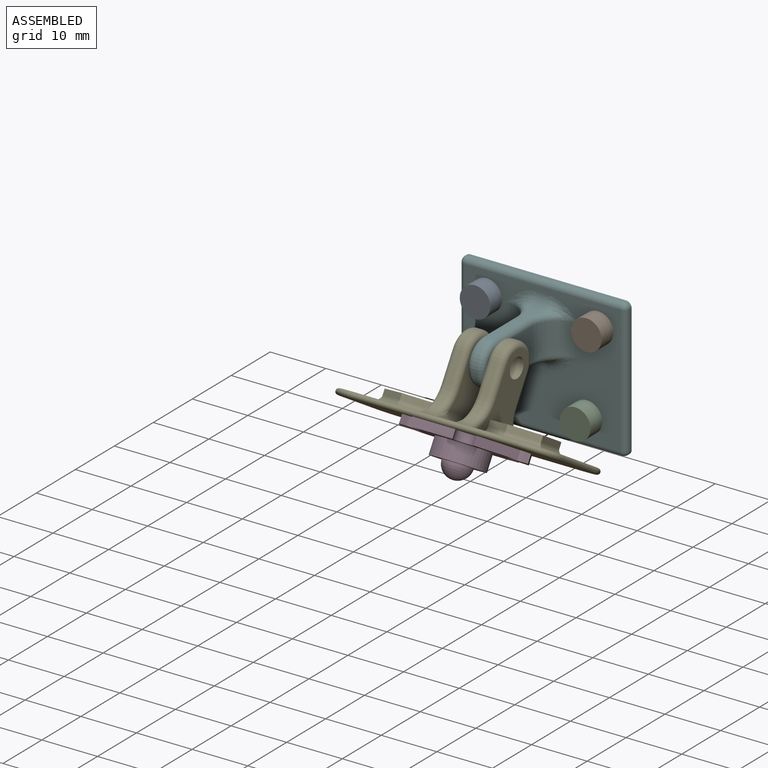
[diagram: assembled view]
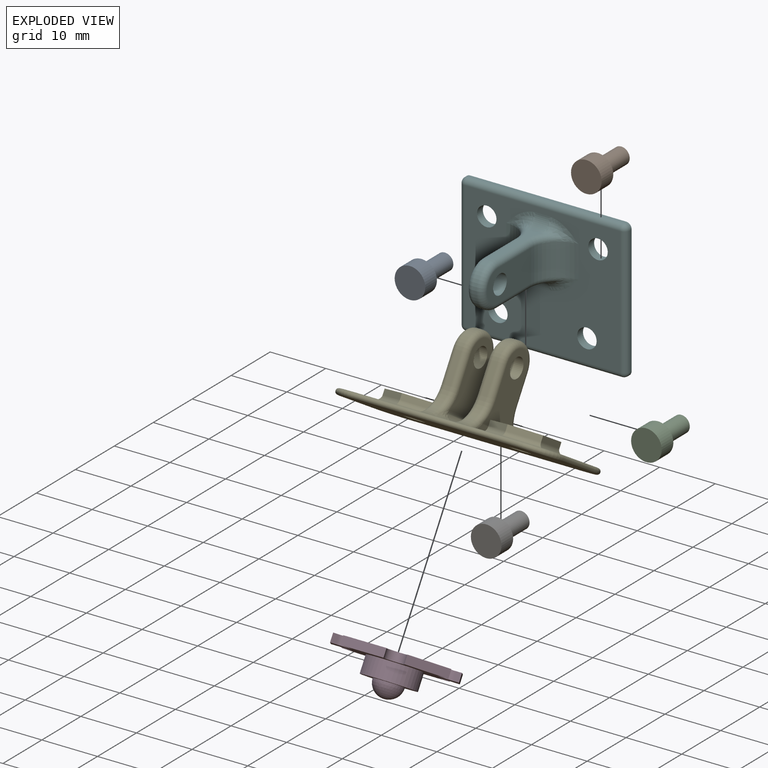
[diagram: exploded view]
GUIDED TOUR — MATED ASSEMBLY (Onshape document a544334e1fa4344969b32d0a, AutoMate assembly a544334e1fa4344969b32d0a_c6847210c81f3b9d24037eff_d57afc837bb6a183b0077f07_default)

This assembly has 7 components, labeled P0..P6 below (a component is one placed occurrence of a part; the same part can appear more than once), held together by 7 mates. A mate is a constraint between two components; its type names the relative motion it leaves free:
  REVOLUTE — leaves rotation about the listed axis free (a hinge).
Axis/direction vectors are unit vectors and 'through' points are millimeter coordinates, both in the assembly's world frame.

MATES
  1. REVOLUTE "Revolute 2": P5 <-> P6, axis (0.000, -1.000, 0.000) through (7.00, -1.50, 5.00) mm
  2. REVOLUTE "Revolute 3": P5 <-> P1, axis (0.000, -1.000, 0.000) through (25.00, -1.50, 20.00) mm
  3. REVOLUTE "Revolute 1": P5 <-> P0, axis (0.000, -1.000, 0.000) through (5.00, -1.50, 20.00) mm
  4. REVOLUTE "Revolute 6": P3 <-> P4, axis (0.000, 0.522, 0.853) through (24.25, -20.51, 7.19) mm
  5. REVOLUTE "Revolute 5": P5 <-> P4, axis (1.000, 0.000, 0.000) through (16.50, -14.50, 17.00) mm
  6. REVOLUTE "Revolute 7": P4 <-> P3, axis (0.000, -0.522, -0.853) through (5.25, -20.51, 7.19) mm
  7. REVOLUTE "Revolute 4": P5 <-> P2, axis (0.000, -1.000, 0.000) through (23.00, -1.50, 5.00) mm

ASSEMBLY ORDER
  1. P4 — the base component [order verified]
  2. P5 [order verified]
  3. P1 [order verified]
  4. P6 [order verified]
  5. P2 [order verified]
  6. P0 [order verified]
  7. P3 [order verified]
Order-tag legend:
  [order verified] — this step's position reverses a verified removal order: the component was checked to insert without passing through the ones already placed.

Of the 7 components, 5 carry the full construction recipe — the FeatureScript program that regenerates the part's solid from scratch; the rest are supplied as boundary geometry only.
Each toured component is shown spotlighted twice — in the assembled view, then in the exploded view, where a leader line traces a displaced component back to its assembled socket (saturated green if recipe-attached, orange if geometry-only; every other component desaturated gray) — followed by its recipe or geometry summary and the mates that hold it.
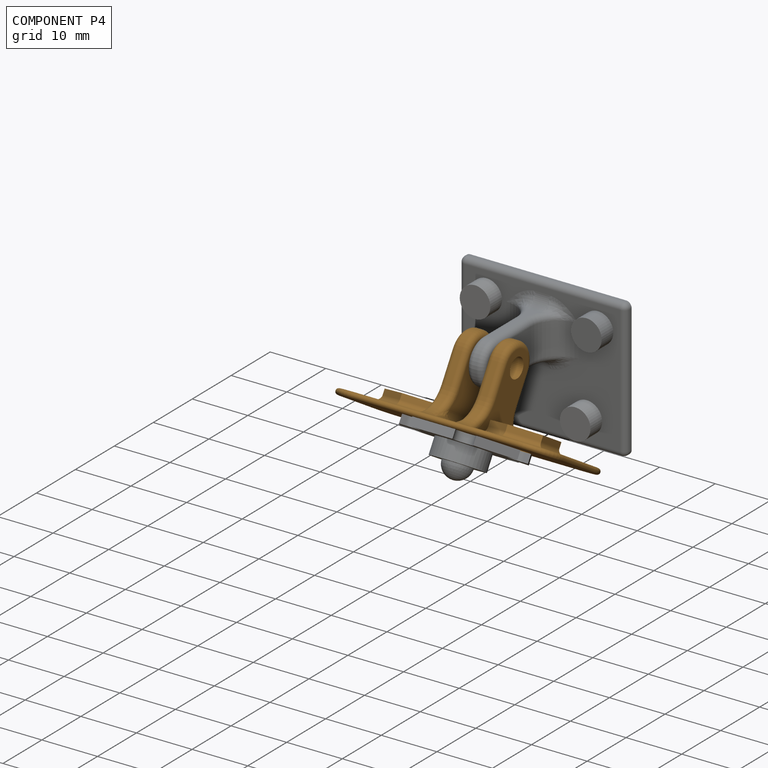
[diagram: component P4 — assembled]
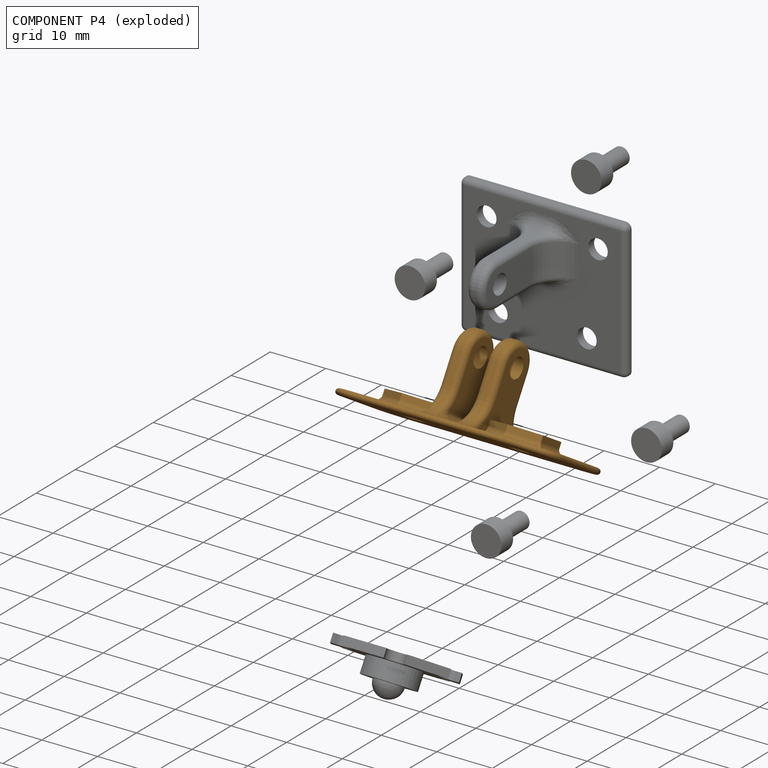
[diagram: component P4 — exploded]
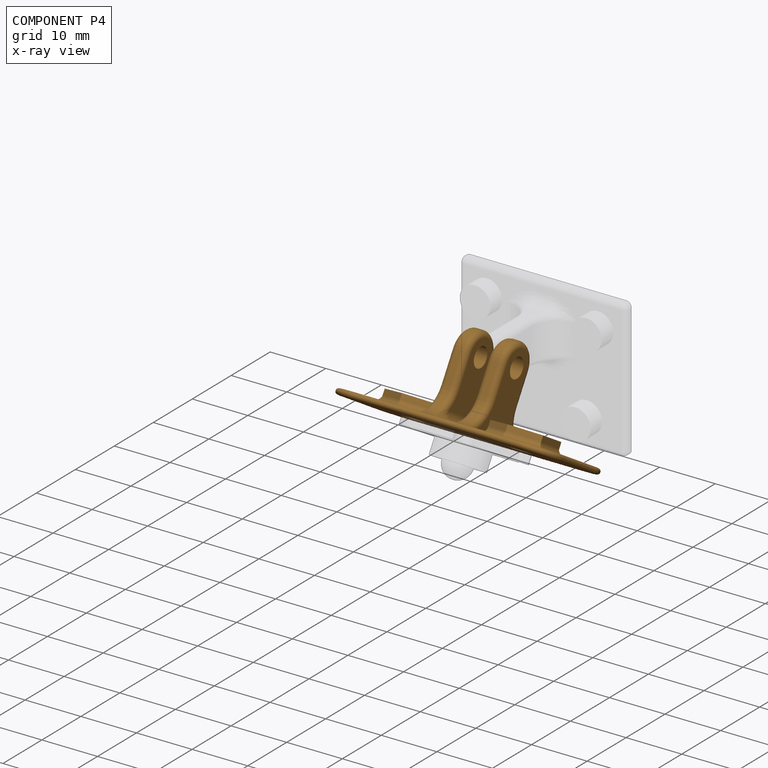
[diagram: component P4 — x-ray view]
COMPONENT P4 — geometry summary (no construction recipe available for this part):
  bounding box: 40.8 x 20.8 x 17.1 mm
  B-rep topology: 1 solid, 90 faces, 444 edges
  volume: 1608 mm^3 (11% of its bounding box)
  symmetry: 2-fold rotationally symmetric about the z axis; mirror-symmetric across its x mid-plane, y mid-plane
Held by: REVOLUTE mate "Revolute 6" to P3; REVOLUTE mate "Revolute 5" to P5; REVOLUTE mate "Revolute 7" to P3.
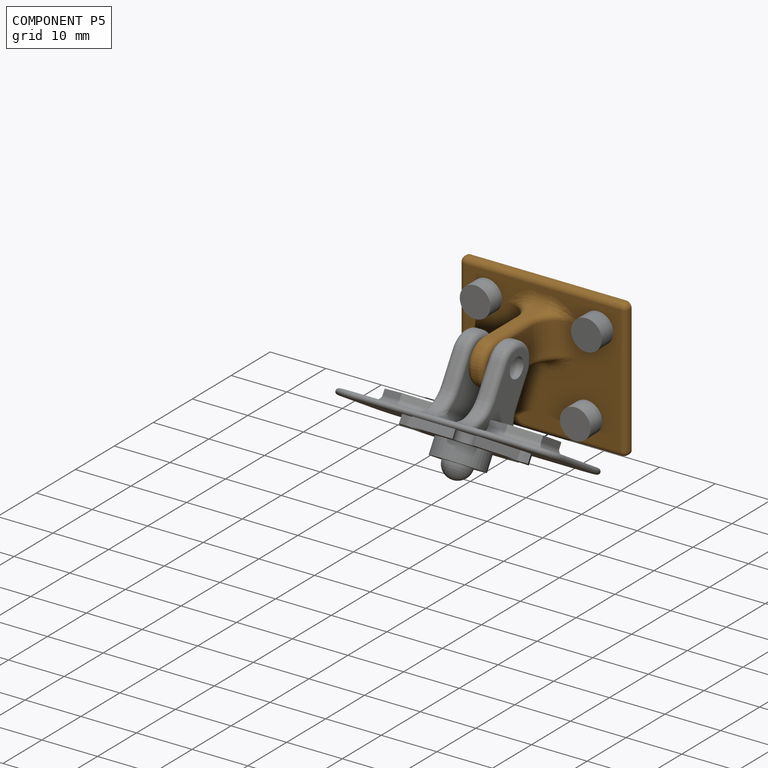
[diagram: component P5 — assembled]
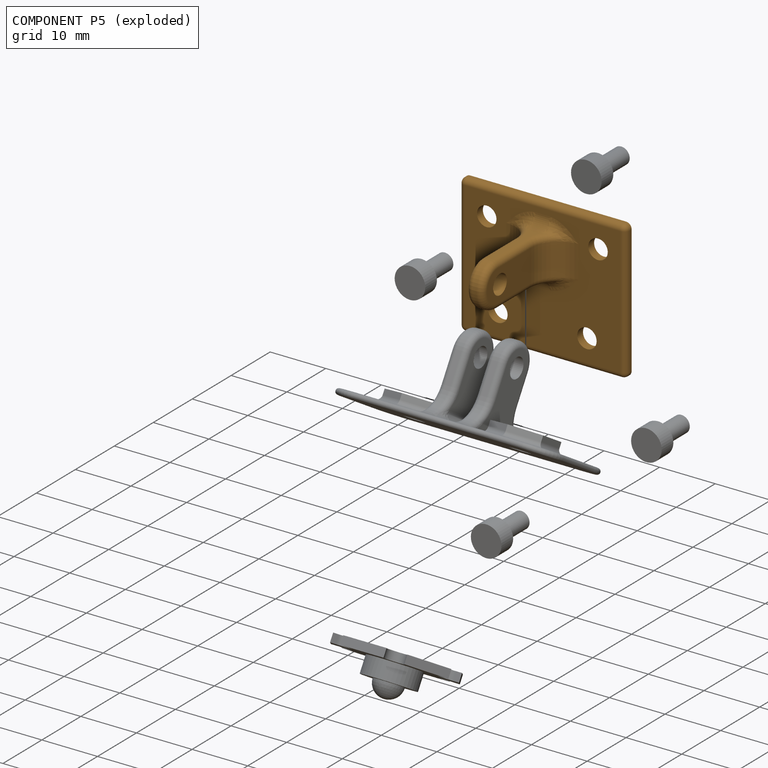
[diagram: component P5 — exploded]
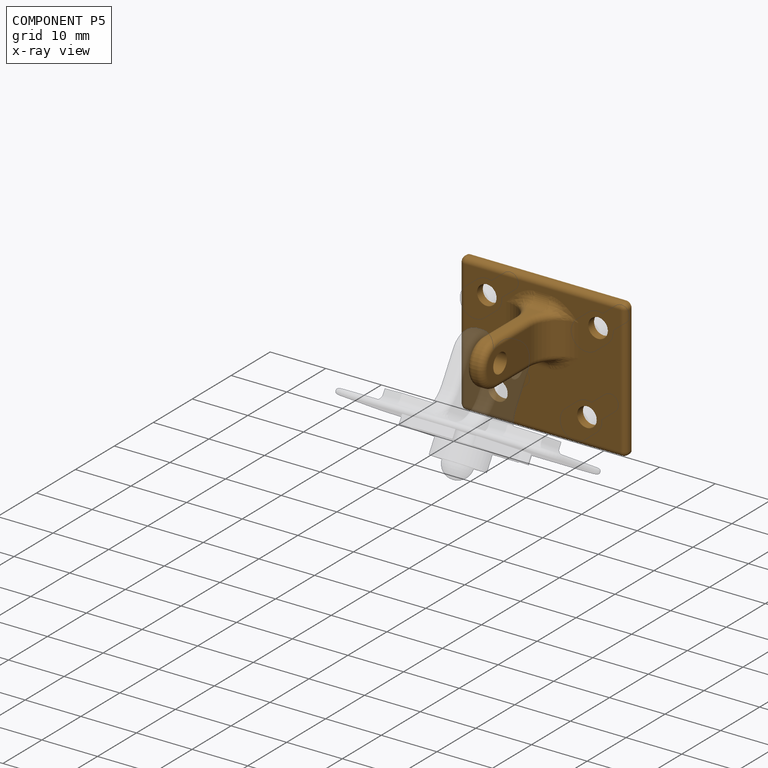
[diagram: component P5 — x-ray view]
COMPONENT P5 — geometry summary (no construction recipe available for this part):
  bounding box: 30.0 x 25.0 x 20.3 mm
  B-rep topology: 1 solid, 46 faces, 212 edges
  volume: 1487 mm^3 (10% of its bounding box)
  symmetry: mirror-symmetric across its x mid-plane
Held by: REVOLUTE mate "Revolute 2" to P6; REVOLUTE mate "Revolute 3" to P1; REVOLUTE mate "Revolute 1" to P0; REVOLUTE mate "Revolute 5" to P4; REVOLUTE mate "Revolute 4" to P2.
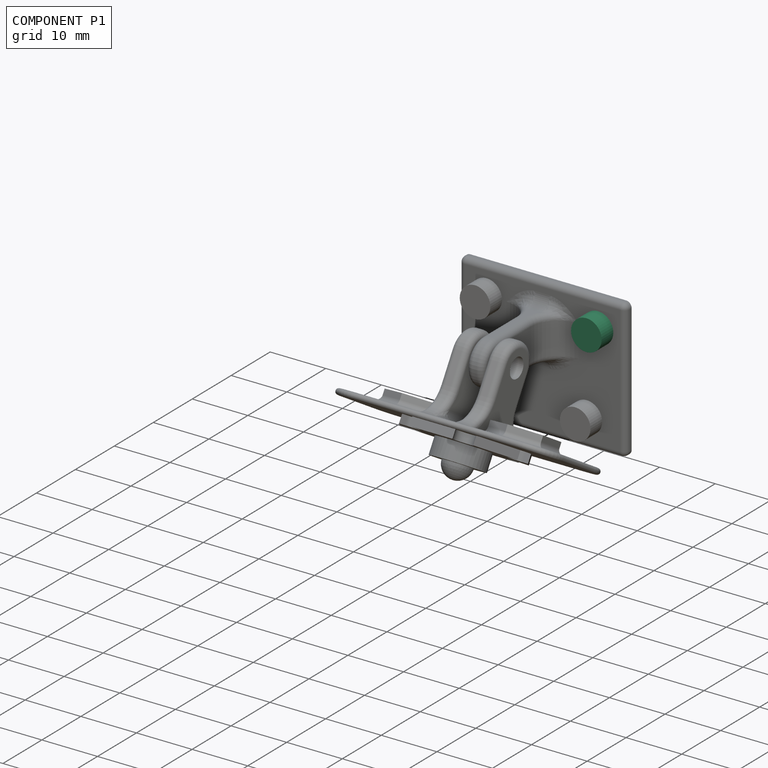
[diagram: component P1 — assembled]
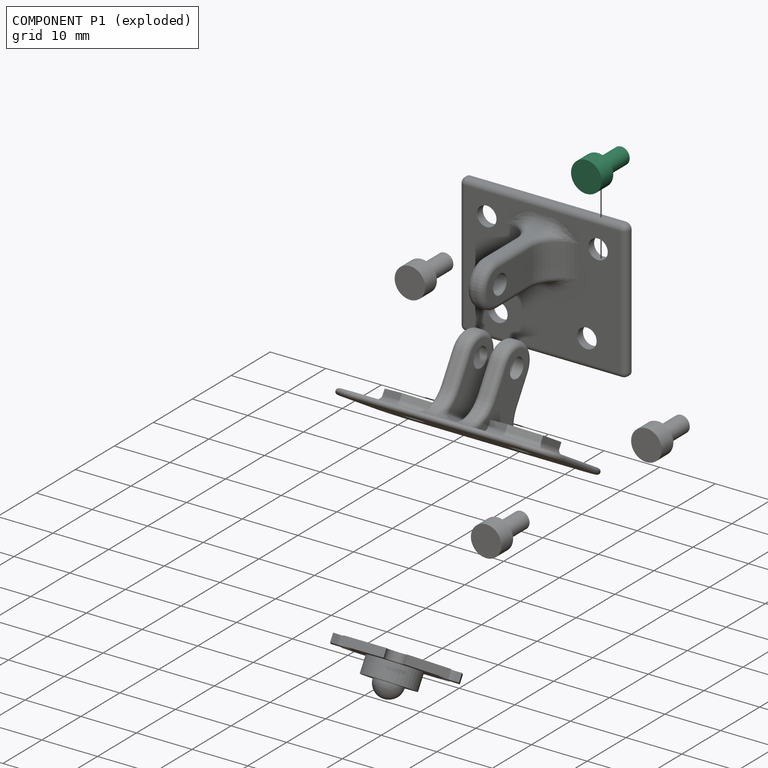
[diagram: component P1 — exploded]
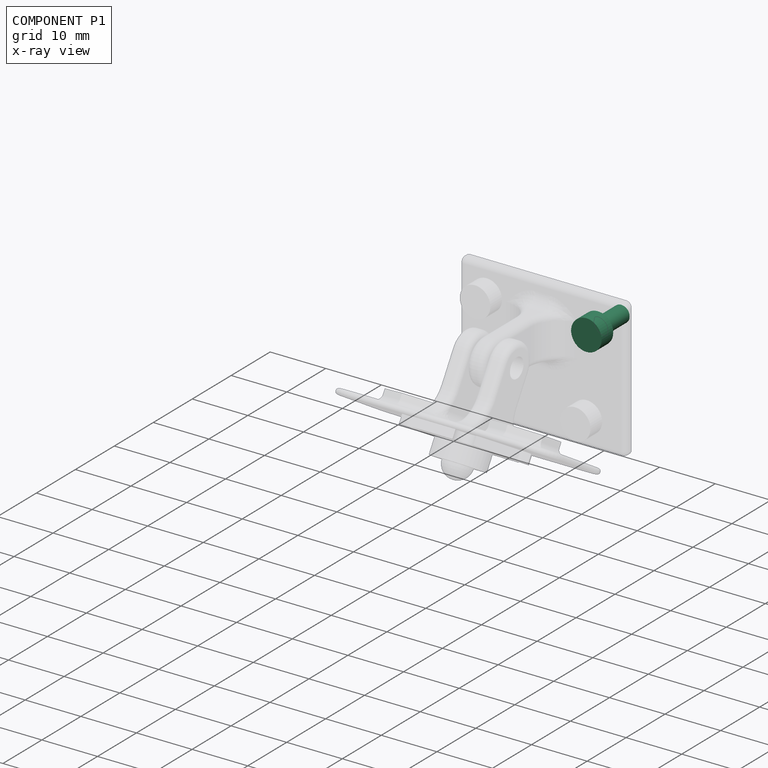
[diagram: component P1 — x-ray view]
COMPONENT P1 — same part as P0 (CADFS 00222713); its construction recipe is shown at P0.
Held by: REVOLUTE mate "Revolute 3" to P5.
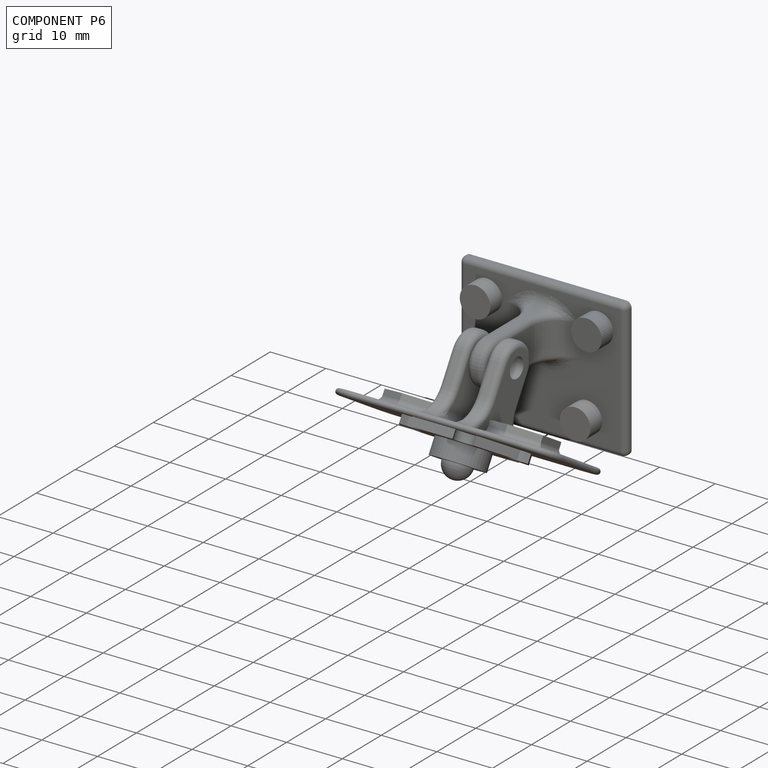
[diagram: component P6 — assembled]
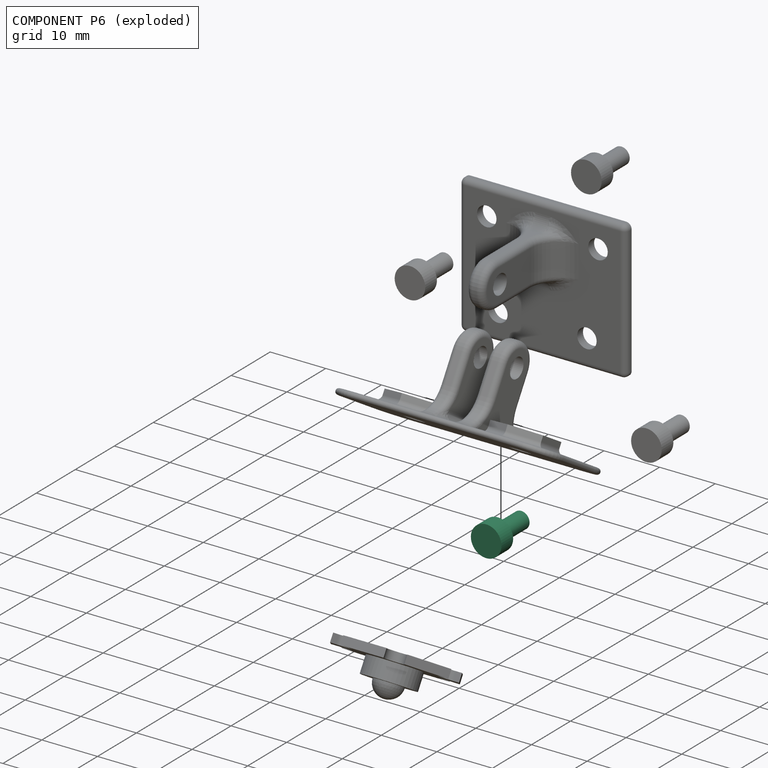
[diagram: component P6 — exploded]
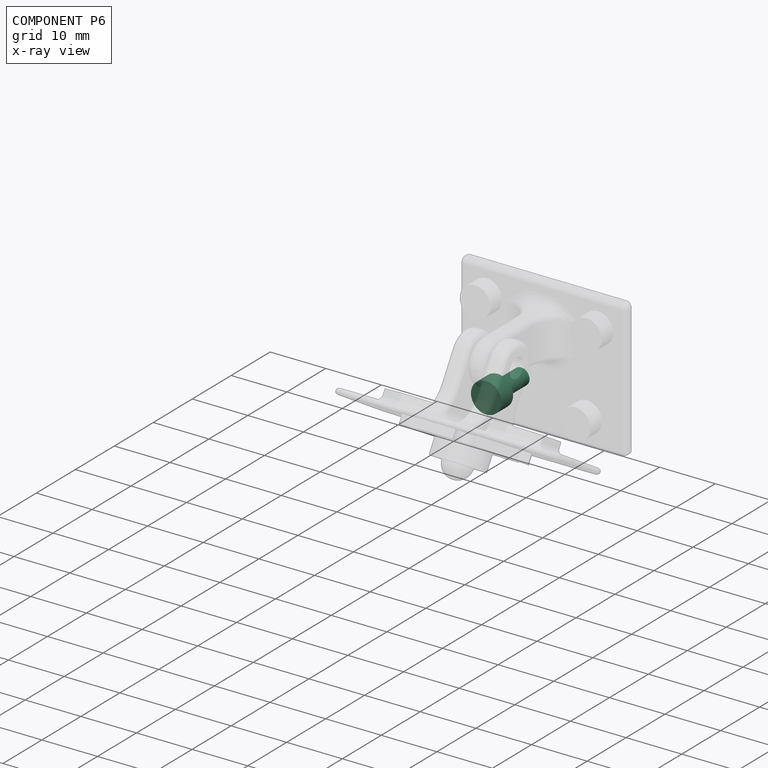
[diagram: component P6 — x-ray view]
COMPONENT P6 — same part as P0 (CADFS 00222713); its construction recipe is shown at P0.
Held by: REVOLUTE mate "Revolute 2" to P5.
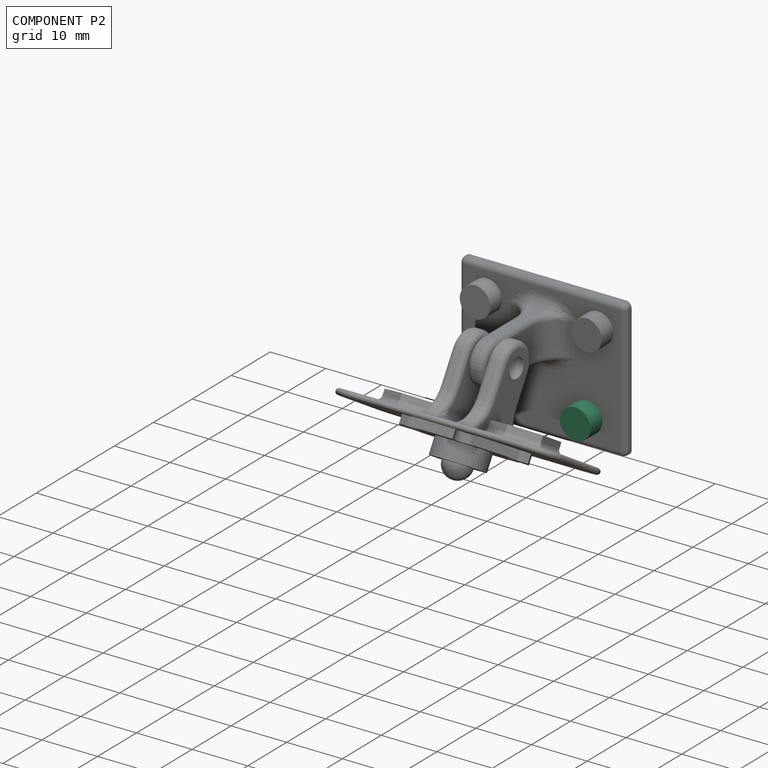
[diagram: component P2 — assembled]
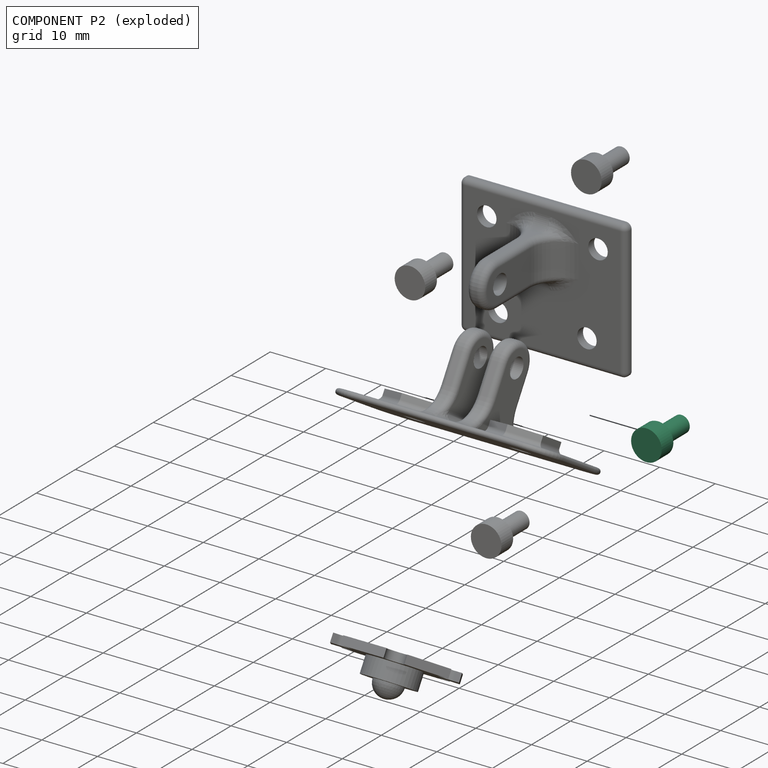
[diagram: component P2 — exploded]
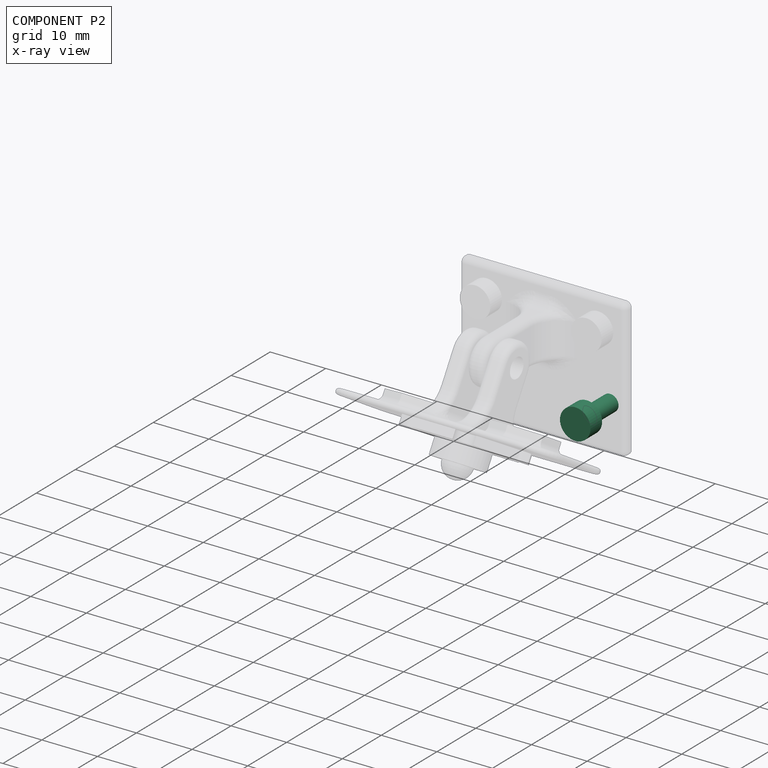
[diagram: component P2 — x-ray view]
COMPONENT P2 — same part as P0 (CADFS 00222713); its construction recipe is shown at P0.
Held by: REVOLUTE mate "Revolute 4" to P5.
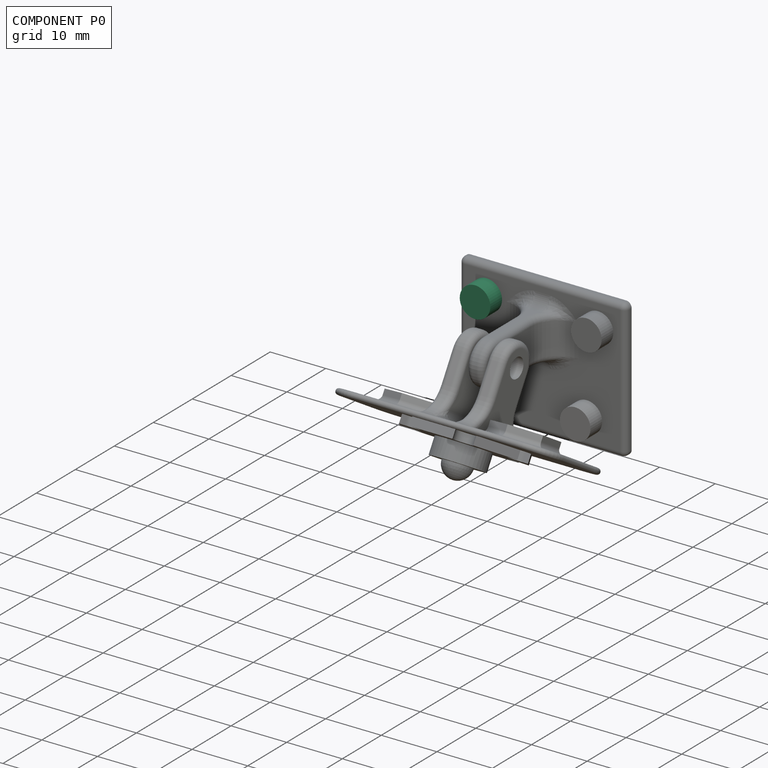
[diagram: component P0 — assembled]
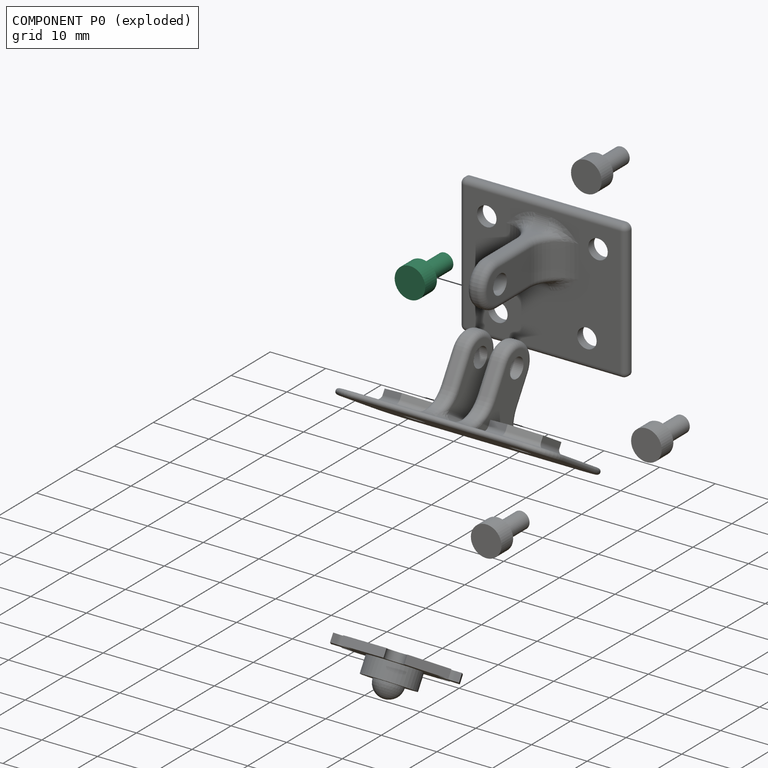
[diagram: component P0 — exploded]
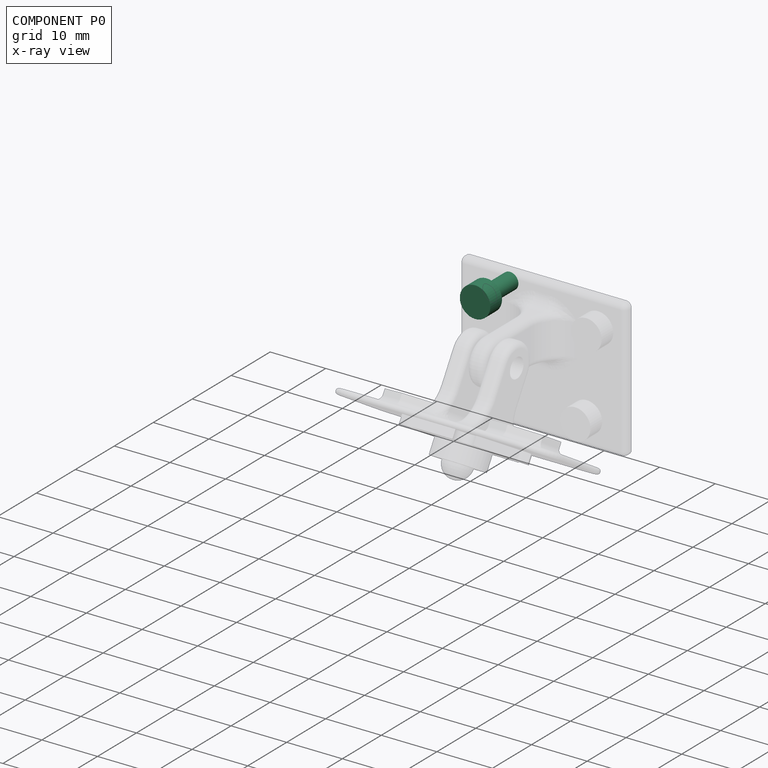
[diagram: component P0 — x-ray view]
COMPONENT P0 — recipe-attached (CADFS 00222713, mesh-verified: the recipe's output STEP matches this component's geometry to below the mesh-comparison resolution (tessellation chordal tolerance ~0.0178 mm)).
Held by: REVOLUTE mate "Revolute 1" to P5.
Construction recipe (FeatureScript — the CAD program that rebuilds this solid; sketch coordinates are in the units given by the * unit suffixes, e.g. mm):

FeatureScript 1511;
import(path : "onshape/std/geometry.fs", version : "1511.0");
import(path : "onshape/std/common.fs", version : "1511.0");
const mm = millimeter;
const VERTEX = EntityType.VERTEX;
const EDGE = EntityType.EDGE;
const FACE = EntityType.FACE;
const BODY = EntityType.BODY;
function v(x, y){return vector(x, y);}
function OD(order){return orderDisambiguation(order);}
function OSD(set){return originalSetDisambiguation(set);}
function TD(topology){return topologyDisambiguation(topology);}
function TDD(query){return trueDependencyDisambiguation(query);}
function sQuery(a, b, c) {return sketchEntityQuery(a, b, c);}

annotation { "Feature Type Name" : "Feature", "Feature Type Description" : "" }
export const myFeature = defineFeature(function(context is Context, id is Id, definition is map)
    precondition{}
    {
        {
            var Q0;
            Q0=qCreatedBy(makeId("Top.planeOp"),FACE);
            var sketch = newSketch(context, id + "F0", { "sketchPlane" : qUnion([Q0])});
            skCircle(sketch, "E0", {"center": v(0, 0) * mm, "radius": 2.75 * mm});
            skSolve(sketch);
        }
        {
            var Q0;
            Q0=makeQuery(id+"F0.imprint","IMPRINT",FACE,{"disambiguationData":[TD([[makeQuery(id+"F0.imprint","IMPRINT",EDGE,{"derivedFrom":sQuery(id+"F0.wireOp",EDGE,"E0")}),1.0]])]});
            extrude(context, id + "F1", {"entities" : qUnion([Q0]), "depth" : 3 * mm});
        }
        {
            var Q0;
            Q0=makeQuery(id+"F1.opExtrude","CAP_FACE",FACE,{"disambiguationData":[OSD([sQuery(id+"F0.wireOp",EDGE,"E0")])],"isStart":true});
            var sketch = newSketch(context, id + "F2", { "sketchPlane" : qUnion([Q0])});
            skCircle(sketch, "E1", {"center": v(0, 0) * mm, "radius": 1.5 * mm});
            skSolve(sketch);
        }
        {
            var Q0;
            Q0=makeQuery(id+"F2.imprint","IMPRINT",FACE,{"disambiguationData":[TD([[makeQuery(id+"F2.imprint","IMPRINT",EDGE,{"derivedFrom":sQuery(id+"F2.wireOp",EDGE,"E1")}),1.0]])]});
            extrude(context, id + "F3", {"entities" : qUnion([Q0]), "operationType" : NewBodyOperationType.ADD, "depth" : 6 * mm});
        }
    });
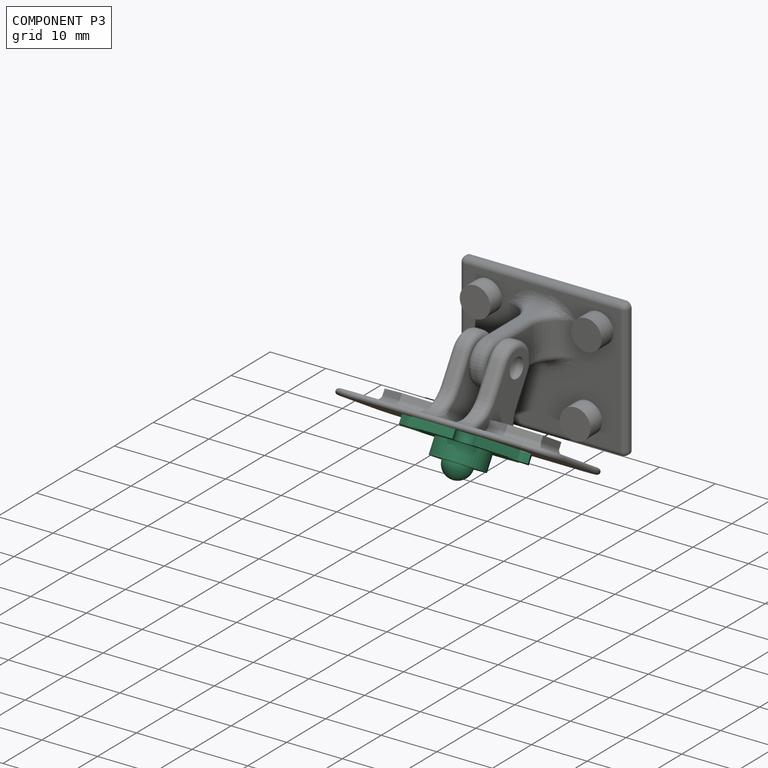
[diagram: component P3 — assembled]
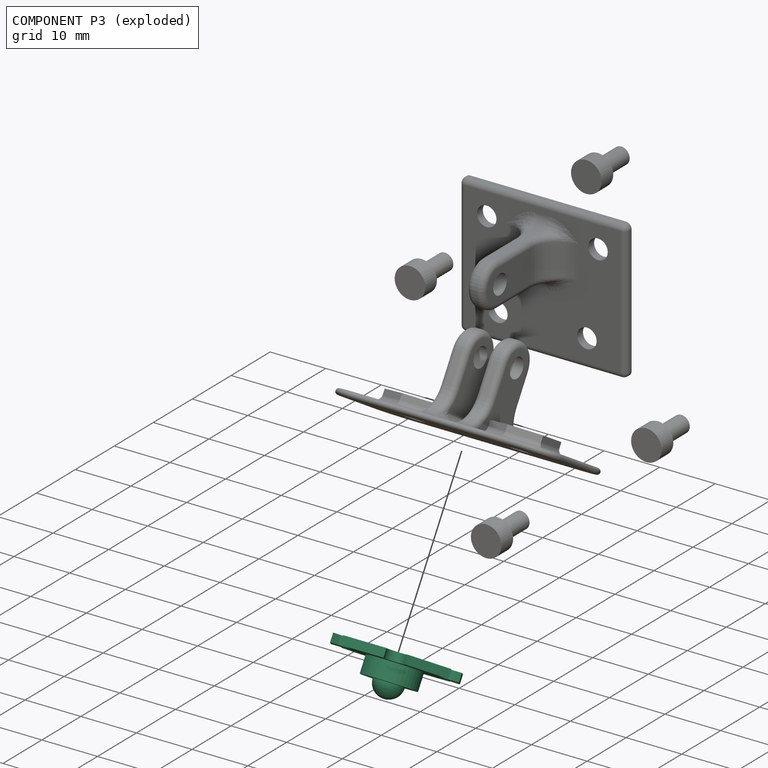
[diagram: component P3 — exploded]
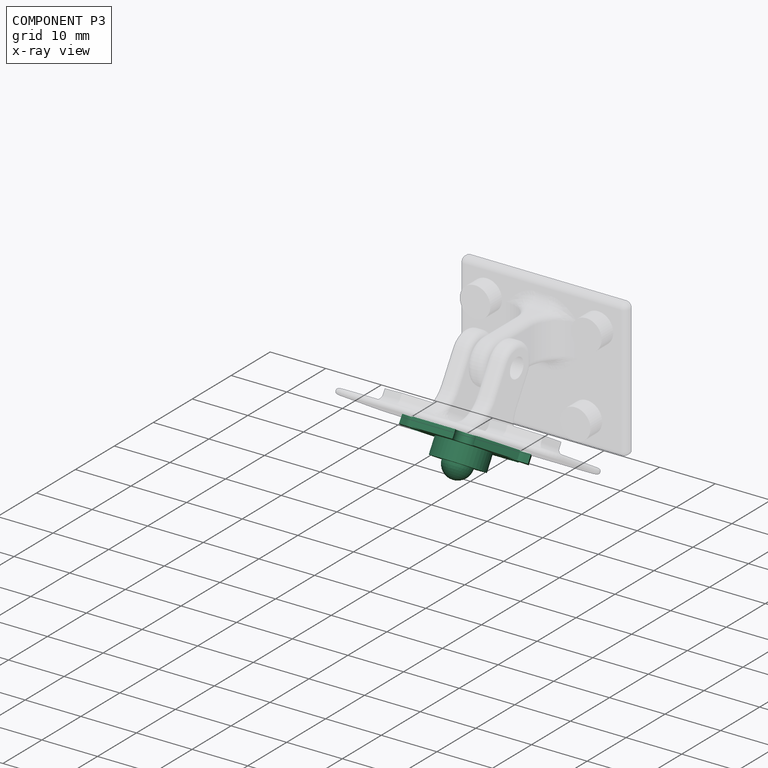
[diagram: component P3 — x-ray view]
COMPONENT P3 — recipe-attached (CADFS 00222714, mesh-verified: the recipe's output STEP matches this component's geometry to below the mesh-comparison resolution (tessellation chordal tolerance ~0.0448 mm)).
Held by: REVOLUTE mate "Revolute 6" to P4; REVOLUTE mate "Revolute 7" to P4.
Construction recipe (FeatureScript — the CAD program that rebuilds this solid; sketch coordinates are in the units given by the * unit suffixes, e.g. mm):

FeatureScript 1511;
import(path : "onshape/std/geometry.fs", version : "1511.0");
import(path : "onshape/std/common.fs", version : "1511.0");
const mm = millimeter;
const VERTEX = EntityType.VERTEX;
const EDGE = EntityType.EDGE;
const FACE = EntityType.FACE;
const BODY = EntityType.BODY;
function v(x, y){return vector(x, y);}
function OD(order){return orderDisambiguation(order);}
function OSD(set){return originalSetDisambiguation(set);}
function TD(topology){return topologyDisambiguation(topology);}
function TDD(query){return trueDependencyDisambiguation(query);}
function sQuery(a, b, c) {return sketchEntityQuery(a, b, c);}

annotation { "Feature Type Name" : "Feature", "Feature Type Description" : "" }
export const myFeature = defineFeature(function(context is Context, id is Id, definition is map)
    precondition{}
    {
        {
            var Q0;
            Q0=qCreatedBy(makeId("Top.planeOp"),FACE);
            var sketch = newSketch(context, id + "F0", { "sketchPlane" : qUnion([Q0])});
            skCircle(sketch, "E0.cCircle", {"center": v(0, 0) * mm, "radius": 9.95 * mm, "construction": true});
            skLineSegment(sketch, "E0.0", {"start": v(9.95, 5.74) * mm, "end": v(9.95, -5.74) * mm});
            skLineSegment(sketch, "E0.1", {"start": v(9.95, -5.74) * mm, "end": v(0, -11.49) * mm});
            skLineSegment(sketch, "E0.2", {"start": v(0, -11.49) * mm, "end": v(-9.95, -5.74) * mm});
            skLineSegment(sketch, "E0.3", {"start": v(-9.95, -5.74) * mm, "end": v(-9.95, 5.74) * mm});
            skLineSegment(sketch, "E0.4", {"start": v(-9.95, 5.74) * mm, "end": v(0, 11.49) * mm});
            skLineSegment(sketch, "E0.5", {"start": v(0, 11.49) * mm, "end": v(9.95, 5.74) * mm});
            skPoint(sketch, "E0.0.midPoint", {"position": v(9.95, 0) * mm});
            skSolve(sketch);
        }
        {
            var Q0;
            Q0=makeQuery(id+"F0.imprint","IMPRINT",FACE,{"disambiguationData":[TD([[makeQuery(id+"F0.imprint","IMPRINT",EDGE,{"derivedFrom":sQuery(id+"F0.wireOp",EDGE,"E0.0")}),-1.0]])]});
            extrude(context, id + "F1", {"entities" : qUnion([Q0]), "depth" : 1.5 * mm});
        }
        {
            var Q0;
            Q0=makeQuery(id+"F1.opExtrude","CAP_FACE",FACE,{"disambiguationData":[OSD([sQuery(id+"F0.wireOp",EDGE,"E0.0"),sQuery(id+"F0.wireOp",EDGE,"E0.1"),sQuery(id+"F0.wireOp",EDGE,"E0.2"),sQuery(id+"F0.wireOp",EDGE,"E0.3"),sQuery(id+"F0.wireOp",EDGE,"E0.4"),sQuery(id+"F0.wireOp",EDGE,"E0.5")])],"isStart":false});
            var sketch = newSketch(context, id + "F2", { "sketchPlane" : qUnion([Q0])});
            skLineSegment(sketch, "E1.0.0", {"start": v(9.95, 5.74) * mm, "end": v(0, 11.49) * mm, "construction": true});
            skLineSegment(sketch, "E1.0.1", {"start": v(0, 11.49) * mm, "end": v(-9.95, 5.74) * mm, "construction": true});
            skLineSegment(sketch, "E1.0.2", {"start": v(-9.95, 5.74) * mm, "end": v(-9.95, -5.74) * mm, "construction": true});
            skLineSegment(sketch, "E1.0.3", {"start": v(-9.95, -5.74) * mm, "end": v(0, -11.49) * mm, "construction": true});
            skLineSegment(sketch, "E1.0.4", {"start": v(0, -11.49) * mm, "end": v(9.95, -5.74) * mm, "construction": true});
            skLineSegment(sketch, "E1.0.5", {"start": v(9.95, -5.74) * mm, "end": v(9.95, 5.74) * mm, "construction": true});
            skLineSegment(sketch, "E2", {"start": v(0, 11.49) * mm, "end": v(0, -11.49) * mm, "construction": true});
            skArc(sketch, "E3", {"start": v(-1.6, 9.5) * mm, "mid": v(0, 7.9) * mm, "end": v(1.6, 9.5) * mm});
            skLineSegment(sketch, "E4", {"start": v(-1.6, 9.5) * mm, "end": v(1.6, 9.5) * mm, "construction": true});
            skLineSegment(sketch, "E5", {"start": v(-1.6, 9.5) * mm, "end": v(-1.6, 10.57) * mm});
            skLineSegment(sketch, "E6", {"start": v(1.6, 9.5) * mm, "end": v(1.6, 10.57) * mm});
            skLineSegment(sketch, "E7", {"start": v(-1.6, 10.57) * mm, "end": v(0, 11.49) * mm});
            skLineSegment(sketch, "E8", {"start": v(1.6, 10.57) * mm, "end": v(0, 11.49) * mm});
            skLineSegment(sketch, "E9.1.0", {"start": v(-7.43, 6.14) * mm, "end": v(-8.35, 6.67) * mm});
            skLineSegment(sketch, "E9.1.1", {"start": v(-9.03, 3.36) * mm, "end": v(-9.95, 3.9) * mm});
            skLineSegment(sketch, "E9.1.2", {"start": v(-9.03, 3.36) * mm, "end": v(-7.43, 6.14) * mm, "construction": true});
            skLineSegment(sketch, "E9.1.3", {"start": v(-8.35, 6.67) * mm, "end": v(-9.95, 5.74) * mm});
            skArc(sketch, "E9.1.4", {"start": v(-9.03, 3.36) * mm, "mid": v(-6.84, 3.95) * mm, "end": v(-7.43, 6.14) * mm});
            skLineSegment(sketch, "E9.1.5", {"start": v(-9.95, 3.9) * mm, "end": v(-9.95, 5.74) * mm});
            skLineSegment(sketch, "E9.2.0", {"start": v(-9.03, -3.36) * mm, "end": v(-9.95, -3.9) * mm});
            skLineSegment(sketch, "E9.2.1", {"start": v(-7.43, -6.14) * mm, "end": v(-8.35, -6.67) * mm});
            skLineSegment(sketch, "E9.2.2", {"start": v(-7.43, -6.14) * mm, "end": v(-9.03, -3.36) * mm, "construction": true});
            skLineSegment(sketch, "E9.2.3", {"start": v(-9.95, -3.9) * mm, "end": v(-9.95, -5.74) * mm});
            skArc(sketch, "E9.2.4", {"start": v(-7.43, -6.14) * mm, "mid": v(-6.84, -3.95) * mm, "end": v(-9.03, -3.36) * mm});
            skLineSegment(sketch, "E9.2.5", {"start": v(-8.35, -6.67) * mm, "end": v(-9.95, -5.74) * mm});
            skLineSegment(sketch, "E9.3.0", {"start": v(-1.6, -9.5) * mm, "end": v(-1.6, -10.57) * mm});
            skLineSegment(sketch, "E9.3.1", {"start": v(1.6, -9.5) * mm, "end": v(1.6, -10.57) * mm});
            skLineSegment(sketch, "E9.3.2", {"start": v(1.6, -9.5) * mm, "end": v(-1.6, -9.5) * mm, "construction": true});
            skLineSegment(sketch, "E9.3.3", {"start": v(-1.6, -10.57) * mm, "end": v(0, -11.49) * mm});
            skArc(sketch, "E9.3.4", {"start": v(1.6, -9.5) * mm, "mid": v(0, -7.9) * mm, "end": v(-1.6, -9.5) * mm});
            skLineSegment(sketch, "E9.3.5", {"start": v(1.6, -10.57) * mm, "end": v(0, -11.49) * mm});
            skLineSegment(sketch, "E9.4.0", {"start": v(7.43, -6.14) * mm, "end": v(8.35, -6.67) * mm});
            skLineSegment(sketch, "E9.4.1", {"start": v(9.03, -3.36) * mm, "end": v(9.95, -3.9) * mm});
            skLineSegment(sketch, "E9.4.2", {"start": v(9.03, -3.36) * mm, "end": v(7.43, -6.14) * mm, "construction": true});
            skLineSegment(sketch, "E9.4.3", {"start": v(8.35, -6.67) * mm, "end": v(9.95, -5.74) * mm});
            skArc(sketch, "E9.4.4", {"start": v(9.03, -3.36) * mm, "mid": v(6.84, -3.95) * mm, "end": v(7.43, -6.14) * mm});
            skLineSegment(sketch, "E9.4.5", {"start": v(9.95, -3.9) * mm, "end": v(9.95, -5.74) * mm});
            skLineSegment(sketch, "E9.5.0", {"start": v(9.03, 3.36) * mm, "end": v(9.95, 3.9) * mm});
            skLineSegment(sketch, "E9.5.1", {"start": v(7.43, 6.14) * mm, "end": v(8.35, 6.67) * mm});
            skLineSegment(sketch, "E9.5.2", {"start": v(7.43, 6.14) * mm, "end": v(9.03, 3.36) * mm, "construction": true});
            skLineSegment(sketch, "E9.5.3", {"start": v(9.95, 3.9) * mm, "end": v(9.95, 5.74) * mm});
            skArc(sketch, "E9.5.4", {"start": v(7.43, 6.14) * mm, "mid": v(6.84, 3.95) * mm, "end": v(9.03, 3.36) * mm});
            skLineSegment(sketch, "E9.5.5", {"start": v(8.35, 6.67) * mm, "end": v(9.95, 5.74) * mm});
            skPoint(sketch, "E9.center", {"position": v(0, 0) * mm});
            skSolve(sketch);
        }
        {
            var Q0;
            Q0=makeQuery(id+"F2.imprint","IMPRINT",FACE,{"disambiguationData":[TD([[makeQuery(id+"F2.imprint","IMPRINT",EDGE,{"derivedFrom":sQuery(id+"F2.wireOp",EDGE,"E3")}),1.0]])]});
            var Q1;
            Q1=makeQuery(id+"F2.imprint","IMPRINT",FACE,{"disambiguationData":[TD([[makeQuery(id+"F2.imprint","IMPRINT",EDGE,{"derivedFrom":sQuery(id+"F2.wireOp",EDGE,"E9.5.0")}),1.0]])]});
            var Q2;
            Q2=makeQuery(id+"F2.imprint","IMPRINT",FACE,{"disambiguationData":[TD([[makeQuery(id+"F2.imprint","IMPRINT",EDGE,{"derivedFrom":sQuery(id+"F2.wireOp",EDGE,"E9.4.0")}),1.0]])]});
            var Q3;
            Q3=makeQuery(id+"F2.imprint","IMPRINT",FACE,{"disambiguationData":[TD([[makeQuery(id+"F2.imprint","IMPRINT",EDGE,{"derivedFrom":sQuery(id+"F2.wireOp",EDGE,"E9.2.0")}),1.0]])]});
            var Q4;
            Q4=makeQuery(id+"F2.imprint","IMPRINT",FACE,{"disambiguationData":[TD([[makeQuery(id+"F2.imprint","IMPRINT",EDGE,{"derivedFrom":sQuery(id+"F2.wireOp",EDGE,"E9.1.0")}),1.0]])]});
            var Q5;
            Q5=makeQuery(id+"F2.imprint","IMPRINT",FACE,{"disambiguationData":[TD([[makeQuery(id+"F2.imprint","IMPRINT",EDGE,{"derivedFrom":sQuery(id+"F2.wireOp",EDGE,"E9.3.0")}),1.0]])]});
            extrude(context, id + "F3", {"entities" : qUnion([Q0, Q1, Q2, Q3, Q4, Q5]), "operationType" : NewBodyOperationType.REMOVE, "endBound" : BoundingType.THROUGH_ALL, "oppositeDirection" : true, "depth" : 25 * mm});
        }
        {
            var Q0;
            Q0=makeQuery(id+"F1.opExtrude","CAP_FACE",FACE,{"disambiguationData":[OSD([sQuery(id+"F0.wireOp",EDGE,"E0.0"),sQuery(id+"F0.wireOp",EDGE,"E0.1"),sQuery(id+"F0.wireOp",EDGE,"E0.2"),sQuery(id+"F0.wireOp",EDGE,"E0.3"),sQuery(id+"F0.wireOp",EDGE,"E0.4"),sQuery(id+"F0.wireOp",EDGE,"E0.5")])],"isStart":false});
            var sketch = newSketch(context, id + "F4", { "sketchPlane" : qUnion([Q0])});
            skCircle(sketch, "E10", {"center": v(0, 0) * mm, "radius": 4.5 * mm});
            skSolve(sketch);
        }
        {
            var Q0;
            Q0=makeQuery(id+"F4.imprint","IMPRINT",FACE,{"disambiguationData":[TD([[makeQuery(id+"F4.imprint","IMPRINT",EDGE,{"derivedFrom":sQuery(id+"F4.wireOp",EDGE,"E10")}),1.0]])]});
            extrude(context, id + "F5", {"entities" : qUnion([Q0]), "operationType" : NewBodyOperationType.ADD, "depth" : 3 * mm});
        }
        {
            var Q0;
            Q0=makeQuery(id+"F5.opExtrude","CAP_FACE",FACE,{"disambiguationData":[OSD([sQuery(id+"F4.wireOp",EDGE,"E10")])],"isStart":false});
            var sketch = newSketch(context, id + "F6", { "sketchPlane" : qUnion([Q0])});
            skCircle(sketch, "E11", {"center": v(0, 0) * mm, "radius": 2.5 * mm});
            skSolve(sketch);
        }
        {
            var Q0;
            Q0=makeQuery(id+"F6.imprint","IMPRINT",FACE,{"disambiguationData":[TD([[makeQuery(id+"F6.imprint","IMPRINT",EDGE,{"derivedFrom":sQuery(id+"F6.wireOp",EDGE,"E11")}),1.0]])]});
            extrude(context, id + "F7", {"entities" : qUnion([Q0]), "operationType" : NewBodyOperationType.ADD, "depth" : 2.5 * mm});
        }
        {
            var Q0;
            Q0=makeQuery(id+"F7.opExtrude","CAP_EDGE",EDGE,{"disambiguationData":[OSD([sQuery(id+"F6.wireOp",EDGE,"E11")])],"isStart":false});
            fillet(context, id + "F8", {"entities" : qUnion([Q0]), "radius" : 2.5 * mm, "tangentPropagation" : true, "allowEdgeOverflow" : false});
        }
    });
PROVENANCE & LICENSES
Assembly (occurrences, transforms, mates, per-part STEP geometry): AutoMate dataset, Zenodo record 7776208, CC0.
Construction recipes: CADFS (HuggingFace VladPyatov/CADFS, CC-BY-4.0, layered over the ABC dataset), FeatureScript reconstruction programs keyed by ABC model id.
Join: ABC meta listings map ABC model id -> Onshape documentId; within a shared document, parts are matched by geometric signature (bounding-box dims + volume at 0.1% relative tolerance, exact B-rep face/solid counts).
Verification: 5 of this assembly's 7 components carry a recipe attachment, and every attachment is mesh-verified: the CADFS STEP and the AutoMate member STEP were compared as meshes in their shared local frame (symmetric sampled-point-to-mesh distance); worst across the 5 attachments: below the mesh-comparison resolution (tessellation chordal tolerance ~0.0448 mm) on a 30 mm part.
Renders: orthographic iso camera (az 35 / el 25); the floor grid conveys scale (grid pitch printed in each image; no ruler). In the exploded view each component is displaced by its stored offset vector: the offsets alone carry the explosion direction (mate normal/axis signs are not orientation cues and do not encode it), and separation distances are assigned per mate-chain, not proportionally to assembly-order depth.
